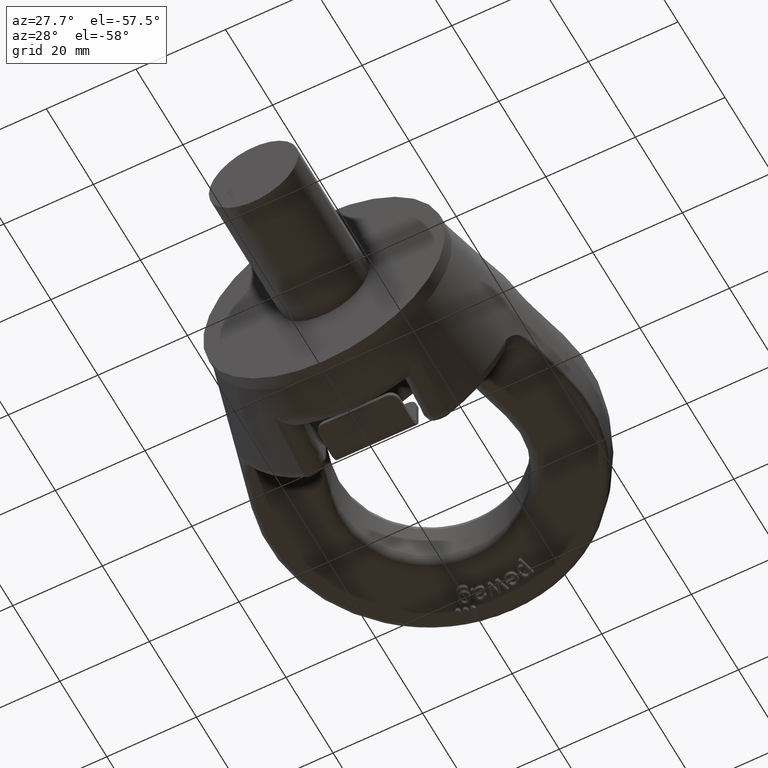
[diagram: clean part render]
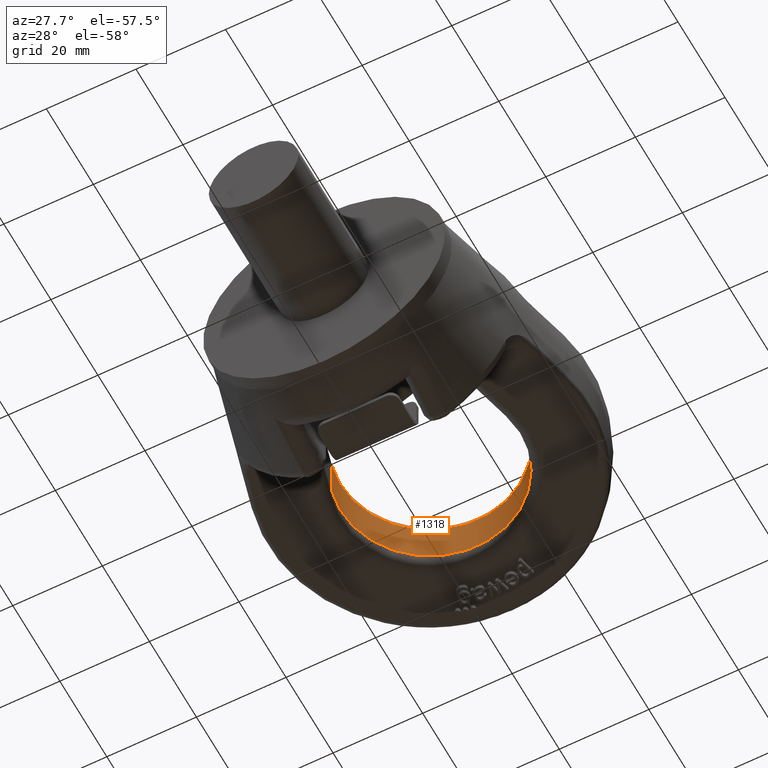
[diagram: same view with one face highlighted and labeled with its STEP entity id]
A machine part, auxiliary view. The second image highlights one B-rep face of the part: STEP entity #1318.
In plain terms, the highlighted cylindrical surface (partial cylindrical patch) has radius 20 mm, axis along (0, 0, -1).
Its self-contained STEP definition (entity closure, byte-faithful):
#1056=CYLINDRICAL_SURFACE('',#5149,20.);
#1097=FACE_OUTER_BOUND('',#1831,.T.);
#1318=ADVANCED_FACE('',(#1097),#1056,.F.);
#1687=CIRCLE('',#5147,20.);
#1688=CIRCLE('',#5148,20.);
#1831=EDGE_LOOP('',(#2835,#2836,#2837,#2838));
#2149=LINE('',#6861,#2429);
#2150=LINE('',#6866,#2430);
#2429=VECTOR('',#5507,1.);
#2430=VECTOR('',#5510,1.);
#2835=ORIENTED_EDGE('',*,*,#4395,.T.);
#2836=ORIENTED_EDGE('',*,*,#4396,.T.);
#2837=ORIENTED_EDGE('',*,*,#4397,.F.);
#2838=ORIENTED_EDGE('',*,*,#4398,.T.);
#4003=VERTEX_POINT('',#6862);
#4004=VERTEX_POINT('',#6863);
#4005=VERTEX_POINT('',#6865);
#4006=VERTEX_POINT('',#6867);
#4395=EDGE_CURVE('',#4003,#4004,#2149,.T.);
#4396=EDGE_CURVE('',#4004,#4005,#1687,.T.);
#4397=EDGE_CURVE('',#4006,#4005,#2150,.T.);
#4398=EDGE_CURVE('',#4006,#4003,#1688,.T.);
#5147=AXIS2_PLACEMENT_3D('',#6864,#5508,#5509);
#5148=AXIS2_PLACEMENT_3D('',#6868,#5511,#5512);
#5149=AXIS2_PLACEMENT_3D('',#6869,#5513,#5514);
#5507=DIRECTION('',(0.,0.,1.));
#5508=DIRECTION('',(0.,1.27553196763001E-16,1.));
#5509=DIRECTION('',(0.,1.,-1.30104260698261E-16));
#5510=DIRECTION('',(0.,0.,1.));
#5511=DIRECTION('',(2.34291072916505E-15,1.27553196763001E-16,-1.));
#5512=DIRECTION('',(-3.08148791101958E-31,1.,1.30104260698261E-16));
#5513=DIRECTION('',(0.,0.,-1.));
#5514=DIRECTION('',(-1.,0.,0.));
#6861=CARTESIAN_POINT('',(19.3675510922611,40.0102139636398,40.15));
#6862=CARTESIAN_POINT('',(19.3675510922611,40.0102139636398,-4.79999999999996));
#6863=CARTESIAN_POINT('',(19.3675510922611,40.0102139636398,4.80000000000001));
#6864=CARTESIAN_POINT('',(0.,45.,4.80000000000001));
#6865=CARTESIAN_POINT('',(-19.3675510922611,40.0102139636398,4.80000000000001));
#6866=CARTESIAN_POINT('',(-19.3675510922611,40.0102139636398,40.15));
#6867=CARTESIAN_POINT('',(-19.3675510922611,40.0102139636398,-4.80000000000005));
#6868=CARTESIAN_POINT('',(1.12459714999922E-14,45.,-4.80000000000001));
#6869=CARTESIAN_POINT('',(0.,45.,40.15));